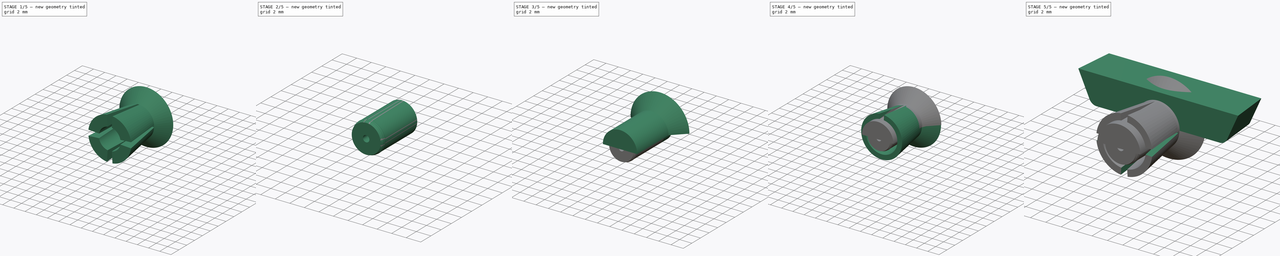
[diagram: build sequence overview — one tinted view per stage of 5, left to right]
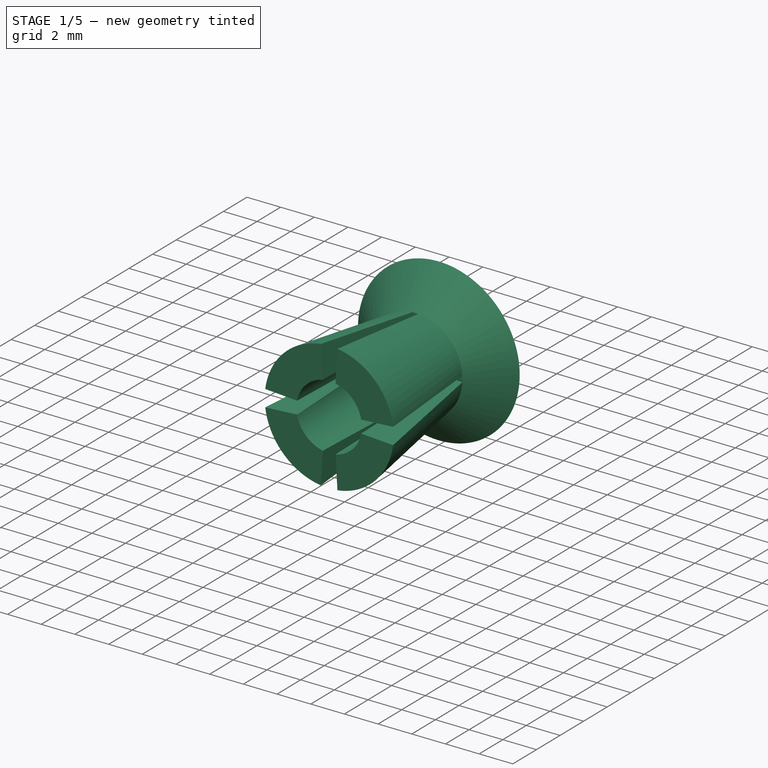
[diagram: stage 1 of 5 — iso view after this stage's code; geometry added in this stage tinted green]
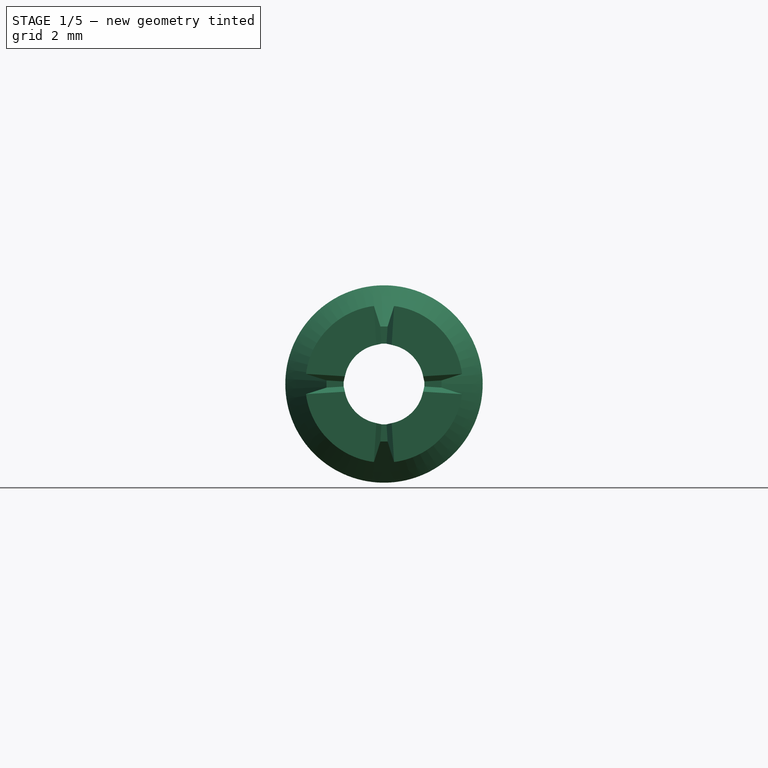
[diagram: stage 1 of 5 — front view after this stage's code; geometry added in this stage tinted green]
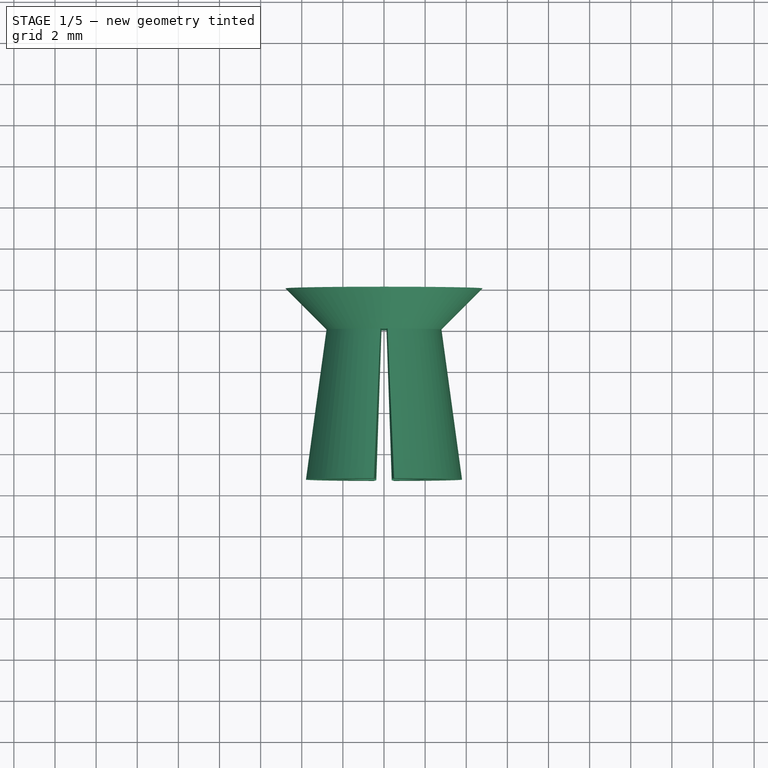
[diagram: stage 1 of 5 — top view after this stage's code; geometry added in this stage tinted green]
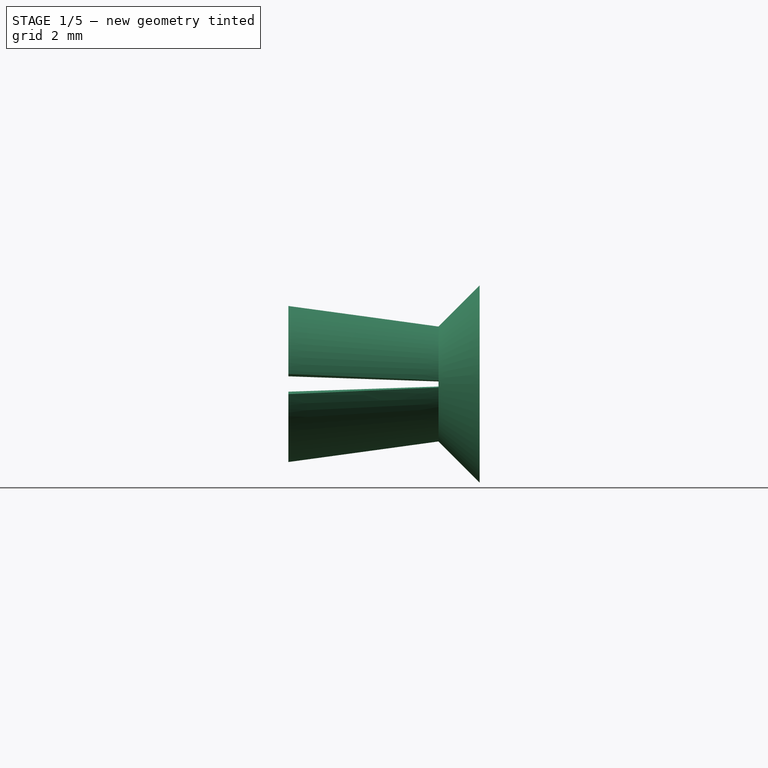
[diagram: stage 1 of 5 — right view after this stage's code; geometry added in this stage tinted green]
FCSTD DOCUMENT  (FreeCAD 1.2R20260210 (Git shallow))
Label: PD_Pins
License: Creative Commons Attribution 4.0
LicenseURL: https://creativecommons.org/licenses/by/4.0/
objects: Sketcher::SketchObject×17, PartDesign::Pad×9, App::Point×8, PartDesign::Body×7, PartDesign::Draft×5, PartDesign::AdditiveLoft×5, PartDesign::Fillet×2, PartDesign::Pocket×2, PartDesign::PolarPattern×2, PartDesign::Groove×2, PartDesign::ShapeBinder×1, PartDesign::Revolution×1, App::Part×1
note: 124 computed .brp shape members not serialized (recipe doc carries the construction recipe); baked Part::Feature solids carry a one-line shape summary decoded from their .brp

FEATURE [PartDesign::Body] Body002  label="Schraubenhalter V002"
  AllowCompound = true
  Group = -> [Sketch003,Pad002,Sketch004,Sketch009,Draft003,Draft004,AdditiveLoft004,Pocket,PolarPattern]
  Origin = -> Origin003
  Tip = -> PolarPattern
FEATURE [Sketcher::SketchObject] Sketch010
  ArcFitTolerance = 0
  AttachmentSupport = -> [XZ_Plane006]
  ExternalTypes = [0]
  FullyConstrained = true
  MakeInternals = false
  MapMode = 5
  Placement = pos=(0,0,0) rot=(1,0,0;1.5708rad)
  sketch-geometry (2):
    g0: Circle CenterX=0 CenterY=0 CenterZ=0 NormalX=0 NormalY=0 NormalZ=1 AngleXU=0 Radius=2.8
    g1: Circle CenterX=0 CenterY=0 CenterZ=0 NormalX=0 NormalY=0 NormalZ=1 AngleXU=0 Radius=1.965
  constraints (4):
    c: Coincident(g0,g-1)
    c: Coincident(g1,g0)
    c: Diameter(g0) = 5.6
    c: Diameter(g1) = 3.93
FEATURE [PartDesign::Pad] Pad005
  Direction = (0,-1,2e-16)
  Length = 7.3
  Length2 = 10
  Placement = pos=(0,0,0) rot=(1,0,0;1.5708rad)
  Profile = -> Sketch010
  ReferenceAxis = -> Sketch010 [N_Axis]
  Refine = true
  SideType = 0
  Suppressed = false
  Type = 0
  Type2 = 0
FEATURE [PartDesign::Draft] Draft005
  Angle = 8
  Base = -> Pad005 [Face1]
  BaseFeature = -> Pad005
  NeutralPlane = -> Pad005 [Face3]
  Placement = pos=(0,0,0) rot=(1,0,0;1.5708rad)
  Refine = true
  SupportTransform = false
  Suppressed = false
FEATURE [PartDesign::Draft] Draft006
  Angle = 0.2
  Base = -> Draft005 [Face2]
  BaseFeature = -> Draft005
  NeutralPlane = -> Draft005 [Face3]
  Placement = pos=(0,0,0) rot=(1,0,0;1.5708rad)
  Refine = true
  SupportTransform = false
  Suppressed = false
FEATURE [Sketcher::SketchObject] Sketch011
  ArcFitTolerance = 0
  AttachmentOffset = pos=(0,0,-2) rot=(0,0,1;0rad)
  AttachmentSupport = -> [XZ_Plane006]
  ExternalTypes = [0]
  FullyConstrained = true
  MakeInternals = false
  MapMode = 5
  Placement = pos=(0,2,-4e-16) rot=(1,0,0;1.5708rad)
  sketch-geometry (2):
    g0: Circle CenterX=0 CenterY=0 CenterZ=0 NormalX=0 NormalY=0 NormalZ=1 AngleXU=0 Radius=4.8
    g1: Circle CenterX=0 CenterY=0 CenterZ=0 NormalX=0 NormalY=0 NormalZ=1 AngleXU=0 Radius=3.965
  constraints (4):
    c: Coincident(g0,g-1)
    c: Coincident(g1,g0)
    c: Diameter(g0) = 9.6
    c: Diameter(g1) = 7.93
FEATURE [PartDesign::AdditiveLoft] AdditiveLoft005
  BaseFeature = -> Draft006
  Closed = false
  Placement = pos=(0,0,0) rot=(1,0,0;1.5708rad)
  Profile = -> Sketch011
  Refine = true
  Ruled = false
  Sections = -> [Sketch010]
  Suppressed = false
FEATURE [Sketcher::SketchObject] Sketch012
  ArcFitTolerance = 0
  AttachmentSupport = -> [XZ_Plane006]
  ExternalTypes = [0]
  FullyConstrained = false
  MakeInternals = false
  MapMode = 5
  Placement = pos=(0,0,0) rot=(1,0,0;1.5708rad)
  sketch-geometry (4):
    g0: LineSegment StartX=-0.0973479 StartY=1.55757 StartZ=0 EndX=-0.25 EndY=4 EndZ=0
    g1: LineSegment StartX=-0.25 StartY=4 StartZ=0 EndX=0.25 EndY=4 EndZ=0
    g2: LineSegment StartX=0.25 StartY=4 StartZ=0 EndX=0.0973479 EndY=1.55757 EndZ=0
    g3: LineSegment StartX=-0.0973479 StartY=1.55757 StartZ=0 EndX=0.0973479 EndY=1.55757 EndZ=0
  constraints (7):
    c: Coincident(g0,g1)
    c: Coincident(g1,g2)
    c: Distance(g1) = 0.5
    c: Symmetric(g0,g1,g-2)
    c: Horizontal(g3)
    c: Coincident(g2,g3)
    c: Coincident(g0,g3)
FEATURE [PartDesign::Pocket] Pocket001
  BaseFeature = -> AdditiveLoft005
  Direction = (0,1,-2e-16)
  Length = 8
  Length2 = 5
  Placement = pos=(0,0,0) rot=(1,0,0;1.5708rad)
  Profile = -> Sketch012
  ReferenceAxis = -> Sketch012 [N_Axis]
  Refine = true
  Reversed = true
  SideType = 0
  Suppressed = false
  TaperAngle = 2
  Type = 0
  Type2 = 0
FEATURE [PartDesign::PolarPattern] PolarPattern001
  Angle = 360
  Axis = -> Sketch012 [N_Axis]
  BaseFeature = -> Pocket001
  Mode = 0
  Occurrences = 4
  Offset = 120
  Originals = -> [Pocket001]
  Placement = pos=(0,0,0) rot=(1,0,0;1.5708rad)
  Refine = true
  SpacingPattern = [0]
  Spacings = [-1,-1,-1]
  Suppressed = false
  TransformMode = 0
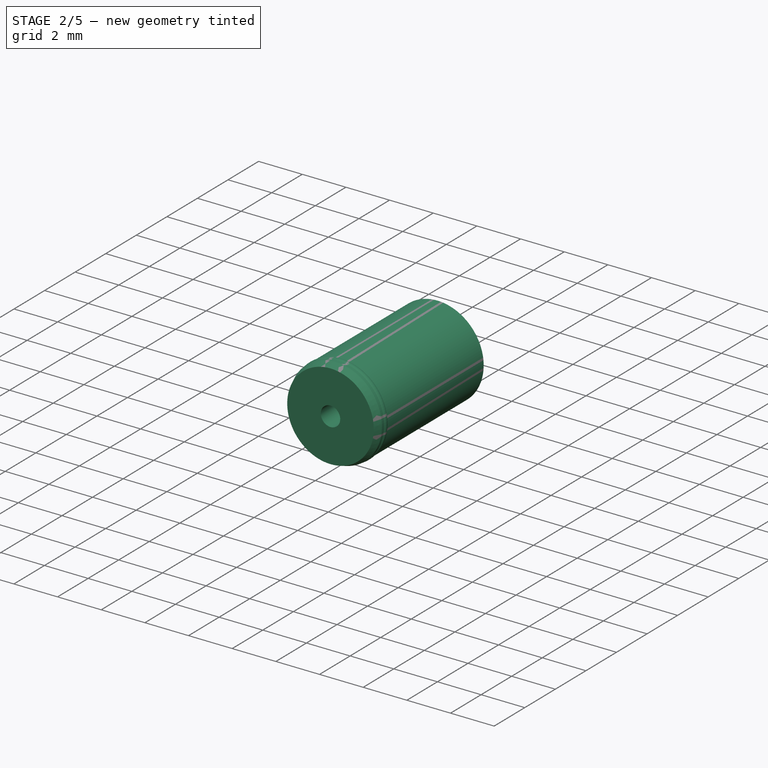
[diagram: stage 2 of 5 — iso view after this stage's code; geometry added in this stage tinted green]
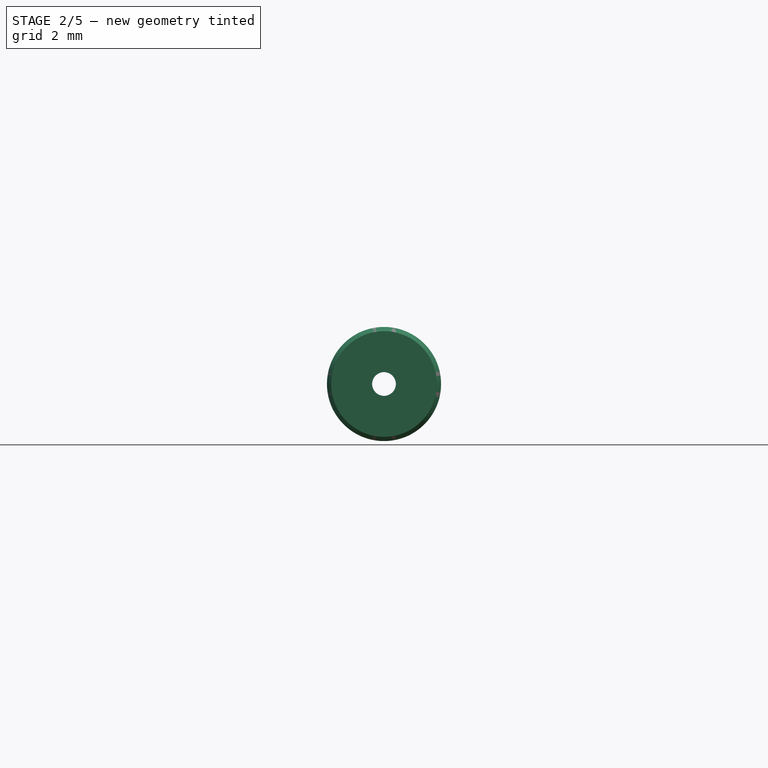
[diagram: stage 2 of 5 — front view after this stage's code; geometry added in this stage tinted green]
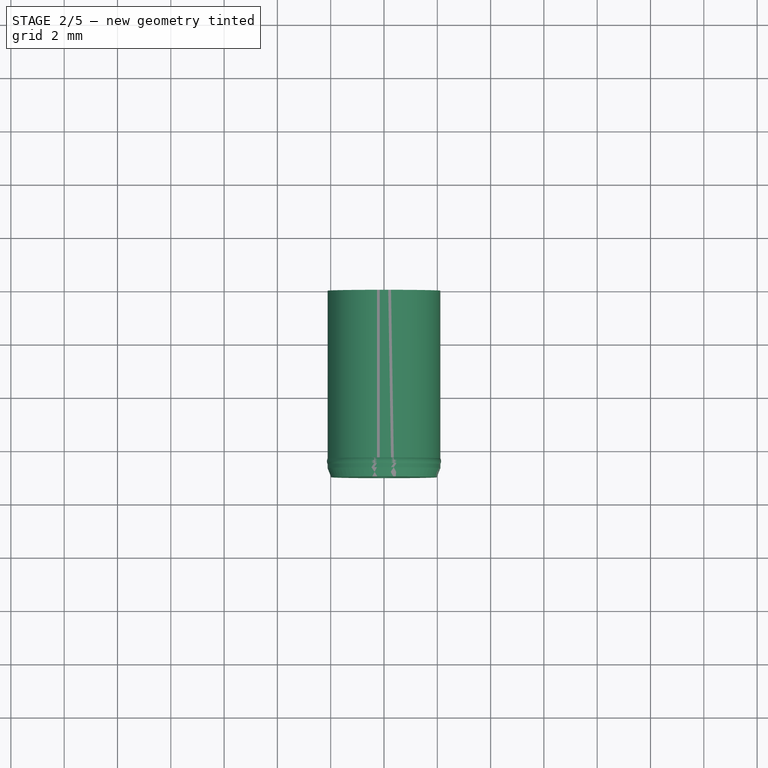
[diagram: stage 2 of 5 — top view after this stage's code; geometry added in this stage tinted green]
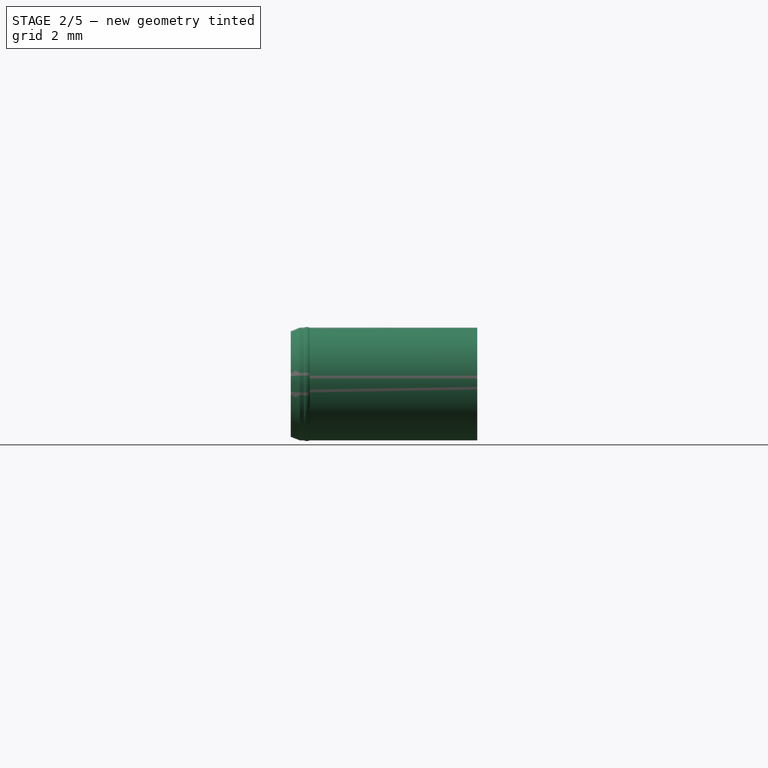
[diagram: stage 2 of 5 — right view after this stage's code; geometry added in this stage tinted green]
FEATURE [PartDesign::Fillet] Fillet002
  Base = -> PolarPattern001 [Edge24,Edge30,Edge36,Edge18,Edge20,Edge21,Edge14,Edge13,Edge32,Edge33,Edge27,Edge26]
  BaseFeature = -> PolarPattern001
  Placement = pos=(0,0,0) rot=(1,0,0;1.5708rad)
  Radius = 0.12
  Refine = true
  SupportTransform = false
  Suppressed = false
  UseAllEdges = false
FEATURE [PartDesign::Body] Body004  label="Schraubenhalter V004"
  AllowCompound = true
  Group = -> [Sketch007,Pad004,Sketch008,AdditiveLoft003]
  Origin = -> Origin005
  Tip = -> AdditiveLoft003
FEATURE [Sketcher::SketchObject] Sketch014
  ArcFitTolerance = 0
  AttachmentSupport = -> [XY_Plane006]
  ExternalGeometry = -> [Fillet002]
  ExternalTypes = [0]
  FullyConstrained = false
  MakeInternals = false
  MapMode = 5
  sketch-geometry (2):
    g0: LineSegment [constr] StartX=-1.96051 StartY=-0.115812 StartZ=0 EndX=-1.90305 EndY=-7.3 EndZ=0
    g1: Circle CenterX=-1.91025 CenterY=-6.40002 CenterZ=0 NormalX=0 NormalY=0 NormalZ=1 AngleXU=0 Radius=0.25
  constraints (4):
    c: Coincident(g0,g-4)
    c: Coincident(g0,g-3)
    c: PointOnObject(g1,g0)
    c: Diameter(g1) = 0.5
FEATURE [PartDesign::Groove] Groove
  Angle = 360
  Angle2 = 0
  Axis = (0,1,0)
  Base = (0,0,0)
  BaseFeature = -> Fillet002
  Placement = pos=(0,0,0) rot=(1,0,0;1.5708rad)
  Profile = -> Sketch014
  ReferenceAxis = -> Sketch014 [V_Axis]
  Refine = true
  Reversed = true
  Suppressed = false
  Type = 0
FEATURE [PartDesign::Body] Body005  label="Schraubenhalter V005"
  AllowCompound = true
  Group = -> [Sketch010,Pad005,Sketch011,Sketch012,Draft005,Draft006,AdditiveLoft005,Pocket001,PolarPattern001,Fillet002,Sketch014,Groove]
  Origin = -> Origin006
  Tip = -> Groove
FEATURE [PartDesign::ShapeBinder] ShapeBinder
  Support = -> [Body005]
  TraceSupport = false
FEATURE [Sketcher::SketchObject] Sketch013
  ArcFitTolerance = 0
  AttachmentSupport = -> [XZ_Plane007]
  ExternalGeometry = -> [ShapeBinder]
  ExternalTypes = [0]
  FullyConstrained = false
  MakeInternals = false
  MapMode = 5
  Placement = pos=(0,0,0) rot=(1,0,0;1.5708rad)
  sketch-geometry (4):
    g0: Circle CenterX=0 CenterY=0 CenterZ=0 NormalX=0 NormalY=0 NormalZ=1 AngleXU=0 Radius=2.115
    g1: LineSegment [constr] StartX=-1.61996 StartY=1.35976 StartZ=0 EndX=-1.50507 EndY=1.26333 EndZ=0
    g2: Circle CenterX=0 CenterY=0 CenterZ=0 NormalX=0 NormalY=0 NormalZ=1 AngleXU=0 Radius=0.445
    g3: LineSegment [constr] StartX=-1.61996 StartY=1.35976 StartZ=0 EndX=-0.340843 EndY=0.286097 EndZ=0
  constraints (10):
    c: Perpendicular(g-3,g1)
    c: PointOnObject(g1,g-3)
    c: PointOnObject(g1,g0)
    c: Distance(g1) = 0.15
    c: Coincident(g0,g-6)
    c: Coincident(g2,g0)
    c: Coincident(g3,g1)
    c: PointOnObject(g3,g2)
    c: Perpendicular(g2,g3)
    c: Distance(g3) = 1.67
FEATURE [PartDesign::Pad] Pad006
  Direction = (0,-1,2e-16)
  Length = 7
  Length2 = 10
  Placement = pos=(0,0,0) rot=(1,0,0;1.5708rad)
  Profile = -> Sketch013
  ReferenceAxis = -> Sketch013 [N_Axis]
  Refine = true
  SideType = 0
  Suppressed = false
  Type = 0
  Type2 = 0
FEATURE [Sketcher::SketchObject] Sketch015
  ArcFitTolerance = 0
  AttachmentSupport = -> [XY_Plane007]
  ExternalGeometry = -> [ShapeBinder]
  ExternalTypes = [0]
  FullyConstrained = false
  MakeInternals = false
  MapMode = 5
  sketch-geometry (2):
    g0: LineSegment [constr] StartX=-1.96051 StartY=-0.115812 StartZ=0 EndX=-1.90305 EndY=-7.3 EndZ=0
    g1: Circle CenterX=-1.91669 CenterY=-6.39808 CenterZ=0 NormalX=0 NormalY=0 NormalZ=1 AngleXU=0 Radius=0.225
  constraints (3):
    c: Coincident(g0,g-4)
    c: Coincident(g0,g-3)
    c: Diameter(g1) = 0.45
FEATURE [PartDesign::Revolution] Revolution
  Angle = 360
  Angle2 = 0
  Axis = (0,1,0)
  Base = (0,0,0)
  BaseFeature = -> Pad006
  FuseOrder = 0
  Placement = pos=(0,0,0) rot=(1,0,0;1.5708rad)
  Profile = -> Sketch015
  ReferenceAxis = -> Sketch015 [V_Axis]
  Refine = true
  Suppressed = false
  Type = 0
FEATURE [Sketcher::SketchObject] Sketch016
  ArcFitTolerance = 0
  AttachmentSupport = -> [XY_Plane007]
  ExternalTypes = [0]
  FullyConstrained = false
  MakeInternals = false
  MapMode = 5
  sketch-geometry (3):
    g0: LineSegment StartX=-2.23885 StartY=-6.34167 StartZ=0 EndX=-1.80714 EndY=-7.44481 EndZ=0
    g1: LineSegment StartX=-1.80714 StartY=-7.44481 StartZ=0 EndX=-2.2822 EndY=-7.15988 EndZ=0
    g2: LineSegment StartX=-2.2822 StartY=-7.15988 StartZ=0 EndX=-2.23885 EndY=-6.34167 EndZ=0
  constraints (3):
    c: Coincident(g0,g1)
    c: Coincident(g1,g2)
    c: Coincident(g2,g0)
FEATURE [PartDesign::Groove] Groove001
  Angle = 360
  Angle2 = 0
  Axis = (0,1,0)
  Base = (0,0,0)
  BaseFeature = -> Revolution
  Placement = pos=(0,0,0) rot=(1,0,0;1.5708rad)
  Profile = -> Sketch016
  ReferenceAxis = -> Sketch016 [V_Axis]
  Refine = true
  Reversed = true
  Suppressed = false
  Type = 0
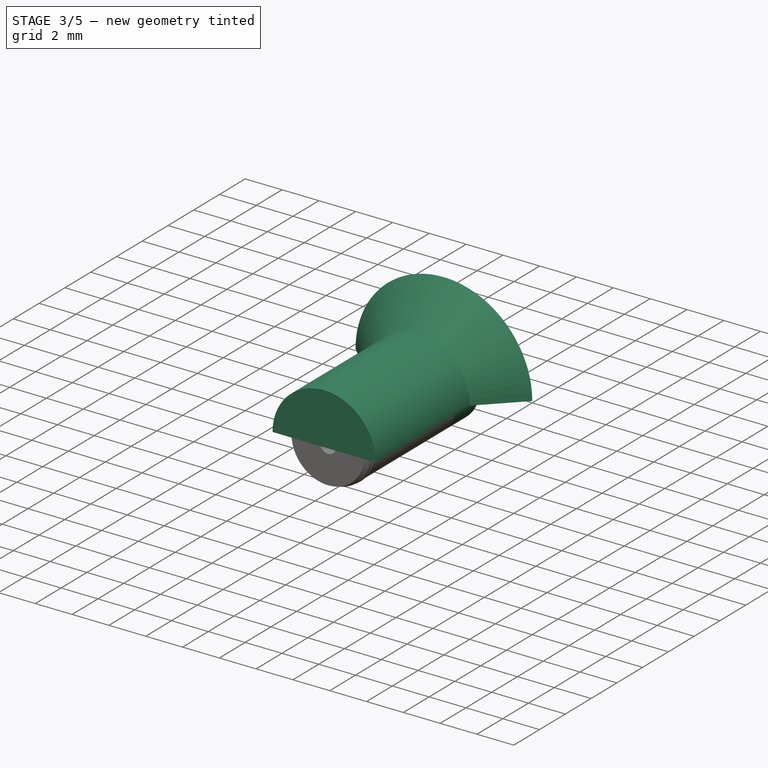
[diagram: stage 3 of 5 — iso view after this stage's code; geometry added in this stage tinted green]
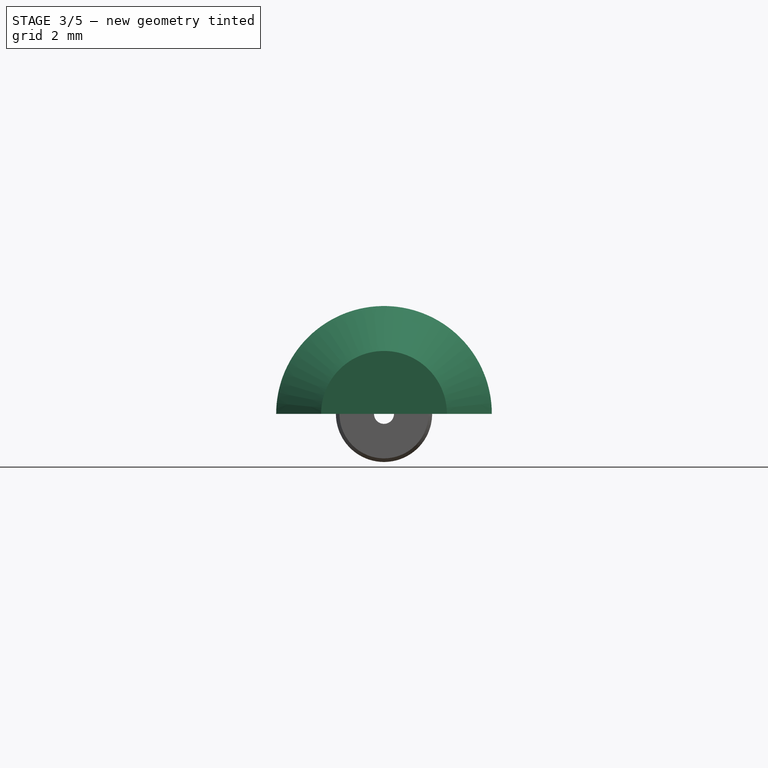
[diagram: stage 3 of 5 — front view after this stage's code; geometry added in this stage tinted green]
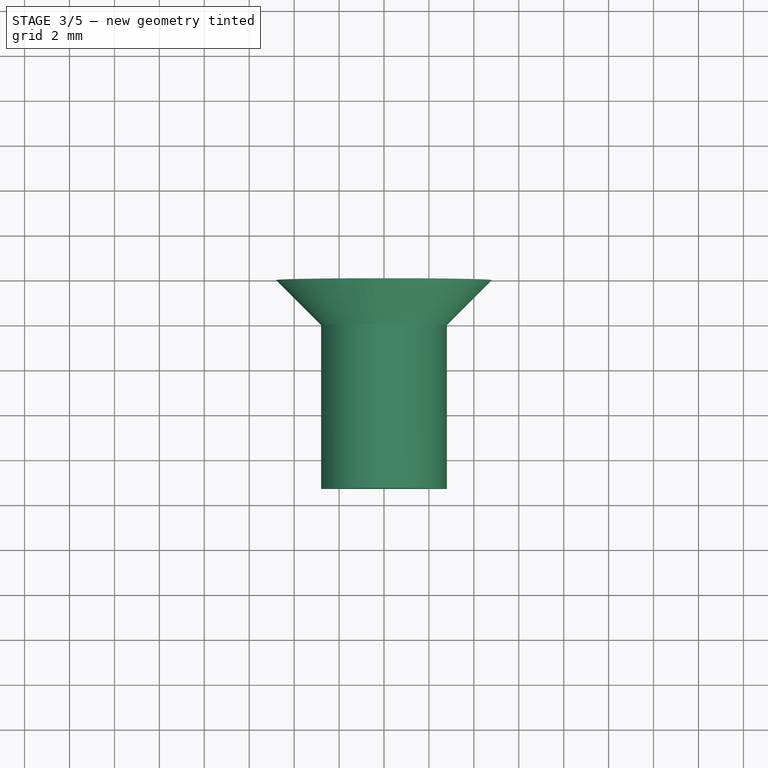
[diagram: stage 3 of 5 — top view after this stage's code; geometry added in this stage tinted green]
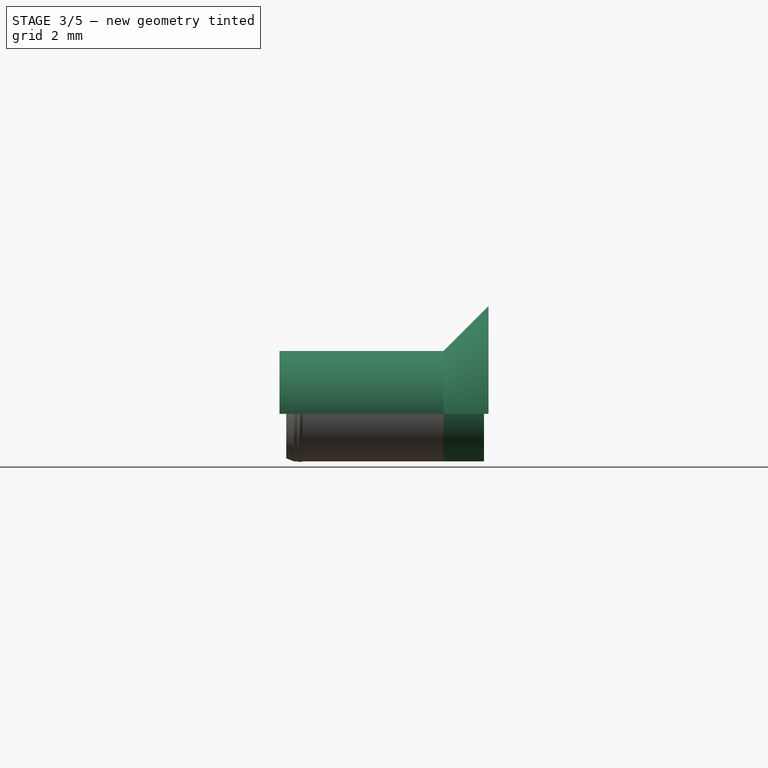
[diagram: stage 3 of 5 — right view after this stage's code; geometry added in this stage tinted green]
FEATURE [Sketcher::SketchObject] Sketch005
  ArcFitTolerance = 0
  AttachmentSupport = -> [XZ_Plane004]
  ExternalTypes = [0]
  FullyConstrained = true
  MakeInternals = false
  MapMode = 5
  Placement = pos=(0,0,0) rot=(1,0,0;1.5708rad)
  sketch-geometry (2):
    g0: ArcOfCircle CenterX=0 CenterY=0 CenterZ=0 NormalX=0 NormalY=0 NormalZ=1 AngleXU=0 Radius=2.8 StartAngle=0 EndAngle=3.14159
    g1: LineSegment StartX=-2.8 StartY=7.8e-15 StartZ=0 EndX=2.8 EndY=7.8e-15 EndZ=0
  constraints (6):
    c: Coincident(g0,g-1)
    c: Horizontal(g1)
    c: PointOnObject(g1,g-1)
    c: Coincident(g0,g1)
    c: Coincident(g0,g1)
    c: DistanceX(g1,g1) = 5.6
FEATURE [PartDesign::Pad] Pad003
  Direction = (0,-1,2e-16)
  Length = 7.3
  Length2 = 10
  Placement = pos=(0,0,0) rot=(1,0,0;1.5708rad)
  Profile = -> Sketch005
  ReferenceAxis = -> Sketch005 [N_Axis]
  Refine = true
  SideType = 0
  Suppressed = false
  Type = 0
  Type2 = 0
FEATURE [Sketcher::SketchObject] Sketch006
  ArcFitTolerance = 0
  AttachmentOffset = pos=(0,0,-2) rot=(0,0,1;0rad)
  AttachmentSupport = -> [XZ_Plane004]
  ExternalTypes = [0]
  FullyConstrained = true
  MakeInternals = false
  MapMode = 5
  Placement = pos=(0,2,-4e-16) rot=(1,0,0;1.5708rad)
  sketch-geometry (2):
    g0: ArcOfCircle CenterX=0 CenterY=0 CenterZ=0 NormalX=0 NormalY=0 NormalZ=1 AngleXU=0 Radius=4.8 StartAngle=0 EndAngle=3.14159
    g1: LineSegment StartX=-4.8 StartY=0 StartZ=0 EndX=4.8 EndY=0 EndZ=0
  constraints (6):
    c: Coincident(g0,g-1)
    c: Horizontal(g1)
    c: PointOnObject(g1,g-1)
    c: Coincident(g0,g1)
    c: Coincident(g0,g1)
    c: DistanceX(g1,g1) = 9.6
FEATURE [PartDesign::AdditiveLoft] AdditiveLoft002
  BaseFeature = -> Pad003
  Closed = false
  Placement = pos=(0,0,0) rot=(1,0,0;1.5708rad)
  Profile = -> Sketch005
  Refine = true
  Ruled = false
  Sections = -> [Sketch006]
  Suppressed = false
FEATURE [PartDesign::Body] Body003  label="Schraubenhalter V003"
  AllowCompound = true
  Group = -> [Sketch005,Pad003,Sketch006,AdditiveLoft002]
  Origin = -> Origin004
  Tip = -> AdditiveLoft002
FEATURE [Sketcher::SketchObject] Sketch007
  ArcFitTolerance = 0
  AttachmentSupport = -> [XZ_Plane005]
  ExternalTypes = [0]
  FullyConstrained = true
  MakeInternals = false
  MapMode = 5
  Placement = pos=(0,0,0) rot=(1,0,0;1.5708rad)
  sketch-geometry (2):
    g0: ArcOfCircle CenterX=0 CenterY=0 CenterZ=0 NormalX=0 NormalY=0 NormalZ=1 AngleXU=0 Radius=2.8 StartAngle=0 EndAngle=3.14159
    g1: LineSegment StartX=-2.8 StartY=1e-16 StartZ=0 EndX=2.8 EndY=1e-16 EndZ=0
  constraints (6):
    c: Coincident(g0,g-1)
    c: Horizontal(g1)
    c: PointOnObject(g1,g-1)
    c: Coincident(g0,g1)
    c: Coincident(g0,g1)
    c: DistanceX(g1,g1) = 5.6
FEATURE [PartDesign::Pad] Pad004
  Direction = (0,-1,2e-16)
  Length = 7.3
  Length2 = 10
  Placement = pos=(0,0,0) rot=(1,0,0;1.5708rad)
  Profile = -> Sketch007
  ReferenceAxis = -> Sketch007 [N_Axis]
  Refine = true
  SideType = 0
  Suppressed = false
  Type = 0
  Type2 = 0
FEATURE [Sketcher::SketchObject] Sketch008
  ArcFitTolerance = 0
  AttachmentOffset = pos=(0,0,-2) rot=(0,0,1;0rad)
  AttachmentSupport = -> [XZ_Plane005]
  ExternalTypes = [0]
  FullyConstrained = true
  MakeInternals = false
  MapMode = 5
  Placement = pos=(0,2,-4e-16) rot=(1,0,0;1.5708rad)
  sketch-geometry (2):
    g0: ArcOfCircle CenterX=0 CenterY=0 CenterZ=0 NormalX=0 NormalY=0 NormalZ=1 AngleXU=0 Radius=4.8 StartAngle=0 EndAngle=3.14159
    g1: LineSegment StartX=-4.8 StartY=0 StartZ=0 EndX=4.8 EndY=0 EndZ=0
  constraints (6):
    c: Coincident(g0,g-1)
    c: Horizontal(g1)
    c: PointOnObject(g1,g-1)
    c: Coincident(g0,g1)
    c: Coincident(g0,g1)
    c: DistanceX(g1,g1) = 9.6
FEATURE [PartDesign::AdditiveLoft] AdditiveLoft003
  BaseFeature = -> Pad004
  Closed = false
  Placement = pos=(0,0,0) rot=(1,0,0;1.5708rad)
  Profile = -> Sketch007
  Refine = true
  Ruled = false
  Sections = -> [Sketch008]
  Suppressed = false
FEATURE [PartDesign::Pad] Pad007
  BaseFeature = -> Groove001
  Direction = (0,1,0)
  Length = 0.2
  Length2 = 10
  Placement = pos=(0,0,0) rot=(1,0,0;1.5708rad)
  Profile = -> Groove001 [Face2]
  SideType = 0
  Suppressed = false
  Type = 0
  Type2 = 0
FEATURE [PartDesign::Pad] Pad008
  BaseFeature = -> Pad007
  Direction = (0,1,0)
  Length = 1.6
  Length2 = 10
  Placement = pos=(0,0,0) rot=(1,0,0;1.5708rad)
  Profile = -> Pad007 [Face5]
  SideType = 0
  Suppressed = false
  Type = 0
  Type2 = 0
FEATURE [PartDesign::Body] Body006  label="Pin V005"
  AllowCompound = true
  Group = -> [Sketch013,ShapeBinder,Pad006,Sketch015,Revolution,Sketch016,Groove001,Pad007,Pad008]
  Origin = -> Origin007
  Tip = -> Pad008
FEATURE [App::Part] Part
  Group = -> [Body,Body001,Body002,Body003,Body004,Body005,Body006]
  Origin = -> Origin
FEATURE [App::Point] Origin008  label="Ursprung"
  Role = Origin
FEATURE [App::Point] Origin009  label="Ursprung"
  Role = Origin
FEATURE [App::Point] Origin010  label="Ursprung"
  Role = Origin
FEATURE [App::Point] Origin011  label="Ursprung"
  Role = Origin
FEATURE [App::Point] Origin012  label="Ursprung"
  Role = Origin
FEATURE [App::Point] Origin013  label="Ursprung"
  Role = Origin
FEATURE [App::Point] Origin014  label="Ursprung"
  Role = Origin
FEATURE [App::Point] Origin015  label="Ursprung"
  Role = Origin
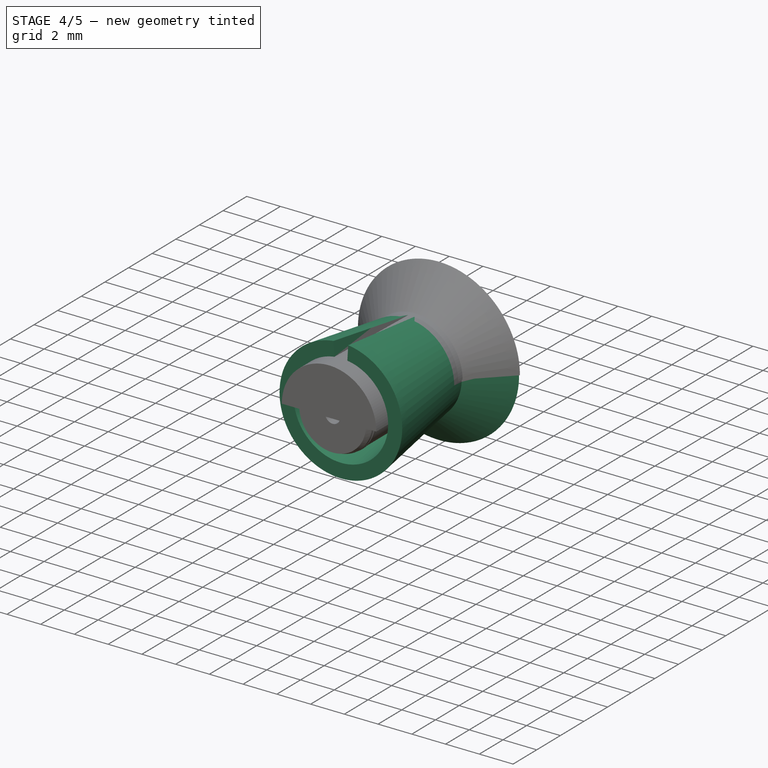
[diagram: stage 4 of 5 — iso view after this stage's code; geometry added in this stage tinted green]
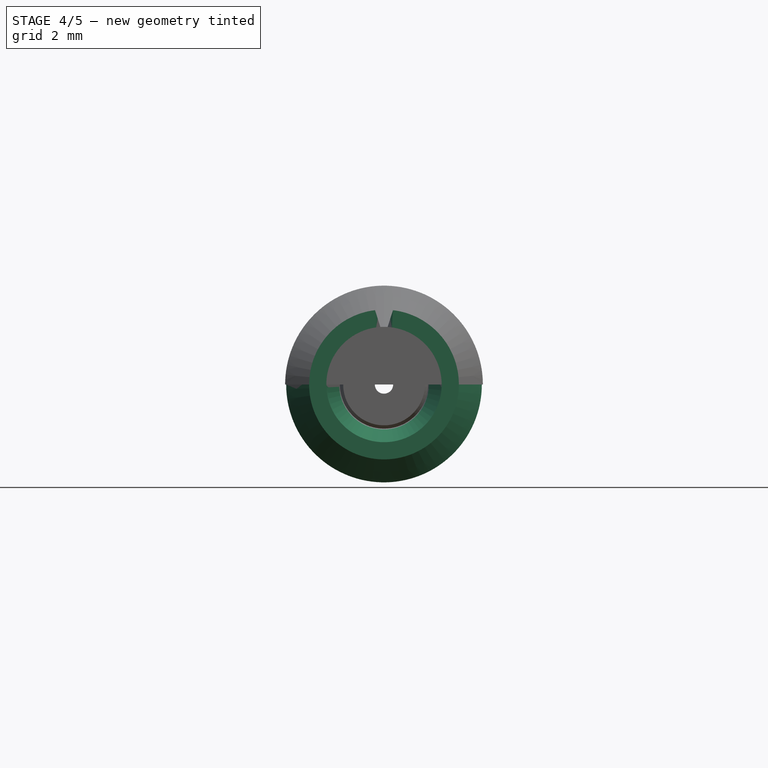
[diagram: stage 4 of 5 — front view after this stage's code; geometry added in this stage tinted green]
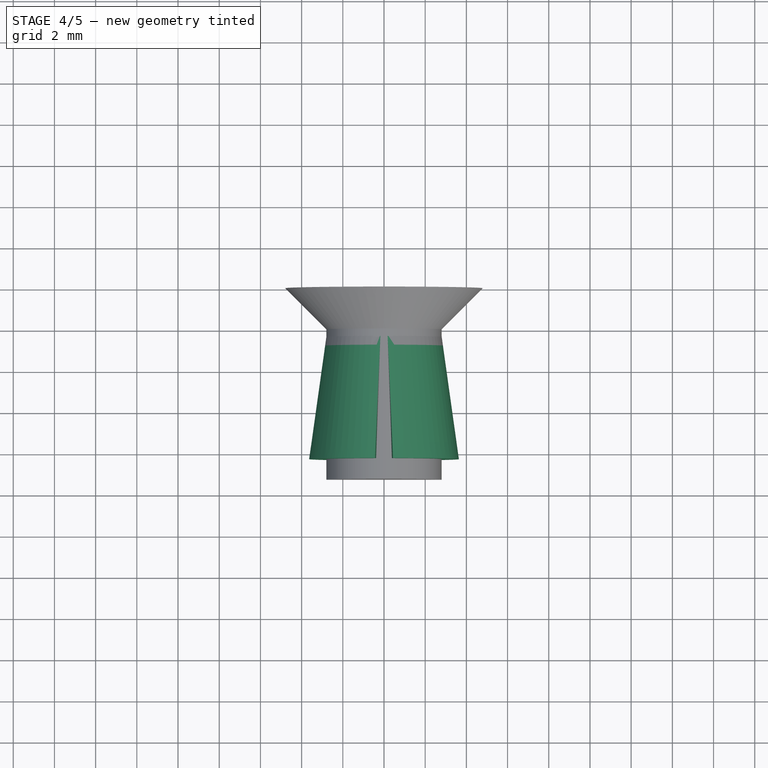
[diagram: stage 4 of 5 — top view after this stage's code; geometry added in this stage tinted green]
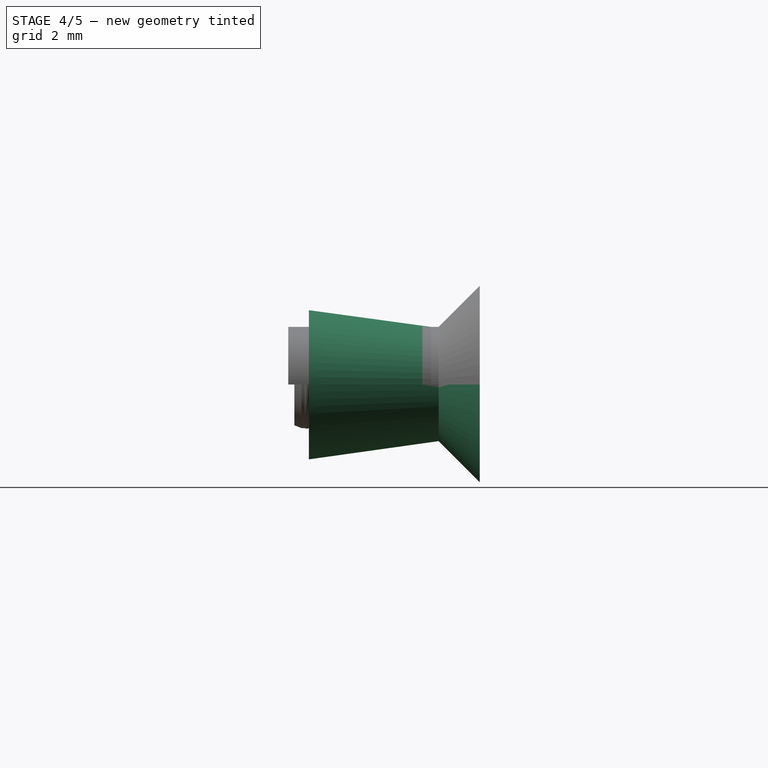
[diagram: stage 4 of 5 — right view after this stage's code; geometry added in this stage tinted green]
FEATURE [PartDesign::Body] Body001  label="Schraubenhalter V001"
  AllowCompound = true
  Group = -> [Sketch001,Pad001,Sketch002,AdditiveLoft]
  Origin = -> Origin002
  Tip = -> AdditiveLoft
FEATURE [Sketcher::SketchObject] Sketch003
  ArcFitTolerance = 0
  AttachmentSupport = -> [XZ_Plane003]
  ExternalTypes = [0]
  FullyConstrained = true
  MakeInternals = false
  MapMode = 5
  Placement = pos=(0,0,0) rot=(1,0,0;1.5708rad)
  sketch-geometry (2):
    g0: Circle CenterX=0 CenterY=0 CenterZ=0 NormalX=0 NormalY=0 NormalZ=1 AngleXU=0 Radius=2.75
    g1: Circle CenterX=0 CenterY=0 CenterZ=0 NormalX=0 NormalY=0 NormalZ=1 AngleXU=0 Radius=1.915
  constraints (4):
    c: Coincident(g0,g-1)
    c: Coincident(g1,g0)
    c: Diameter(g0) = 5.5
    c: Diameter(g1) = 3.83
FEATURE [PartDesign::Pad] Pad002
  Direction = (0,-1,2e-16)
  Length = 6.3
  Length2 = 10
  Placement = pos=(0,0,0) rot=(1,0,0;1.5708rad)
  Profile = -> Sketch003
  ReferenceAxis = -> Sketch003 [N_Axis]
  Refine = true
  SideType = 0
  Suppressed = false
  Type = 0
  Type2 = 0
FEATURE [Sketcher::SketchObject] Sketch004
  ArcFitTolerance = 0
  AttachmentOffset = pos=(0,0,-2) rot=(0,0,1;0rad)
  AttachmentSupport = -> [XZ_Plane003]
  ExternalTypes = [0]
  FullyConstrained = true
  MakeInternals = false
  MapMode = 5
  Placement = pos=(0,2,-4e-16) rot=(1,0,0;1.5708rad)
  sketch-geometry (2):
    g0: Circle CenterX=0 CenterY=0 CenterZ=0 NormalX=0 NormalY=0 NormalZ=1 AngleXU=0 Radius=4.75
    g1: Circle CenterX=0 CenterY=0 CenterZ=0 NormalX=0 NormalY=0 NormalZ=1 AngleXU=0 Radius=3.915
  constraints (4):
    c: Coincident(g0,g-1)
    c: Coincident(g1,g0)
    c: Diameter(g0) = 9.5
    c: Diameter(g1) = 7.83
FEATURE [Sketcher::SketchObject] Sketch009
  ArcFitTolerance = 0
  AttachmentOffset = pos=(0,0,0.3) rot=(0,0,1;0rad)
  AttachmentSupport = -> [XZ_Plane003]
  ExternalTypes = [0]
  FullyConstrained = false
  MakeInternals = false
  MapMode = 5
  Placement = pos=(0,-0.3,1e-16) rot=(1,0,0;1.5708rad)
  sketch-geometry (4):
    g0: LineSegment StartX=-0.0973479 StartY=1.55757 StartZ=0 EndX=-0.25 EndY=4 EndZ=0
    g1: LineSegment StartX=-0.25 StartY=4 StartZ=0 EndX=0.25 EndY=4 EndZ=0
    g2: LineSegment StartX=0.25 StartY=4 StartZ=0 EndX=0.0973479 EndY=1.55757 EndZ=0
    g3: LineSegment StartX=-0.0973479 StartY=1.55757 StartZ=0 EndX=0.0973479 EndY=1.55757 EndZ=0
  constraints (7):
    c: Coincident(g0,g1)
    c: Coincident(g1,g2)
    c: Distance(g1) = 0.5
    c: Symmetric(g0,g1,g-2)
    c: Horizontal(g3)
    c: Coincident(g2,g3)
    c: Coincident(g0,g3)
FEATURE [PartDesign::Draft] Draft003
  Angle = 8
  Base = -> Pad002 [Face1]
  BaseFeature = -> Pad002
  NeutralPlane = -> Pad002 [Face3]
  Placement = pos=(0,0,0) rot=(1,0,0;1.5708rad)
  Refine = true
  SupportTransform = false
  Suppressed = false
FEATURE [PartDesign::Draft] Draft004
  Angle = 8
  Base = -> Draft003 [Face2]
  BaseFeature = -> Draft003
  NeutralPlane = -> Draft003 [Face3]
  Placement = pos=(0,0,0) rot=(1,0,0;1.5708rad)
  Refine = true
  Reversed = true
  SupportTransform = false
  Suppressed = false
FEATURE [PartDesign::AdditiveLoft] AdditiveLoft004
  BaseFeature = -> Draft004
  Closed = false
  Placement = pos=(0,0,0) rot=(1,0,0;1.5708rad)
  Profile = -> Sketch004
  Refine = true
  Ruled = false
  Sections = -> [Sketch003]
  Suppressed = false
FEATURE [PartDesign::Pocket] Pocket
  BaseFeature = -> AdditiveLoft004
  Direction = (0,1,-2e-16)
  Length = 8
  Length2 = 5
  Placement = pos=(0,0,0) rot=(1,0,0;1.5708rad)
  Profile = -> Sketch009
  ReferenceAxis = -> Sketch009 [N_Axis]
  Refine = true
  Reversed = true
  SideType = 0
  Suppressed = false
  TaperAngle = 2
  Type = 0
  Type2 = 0
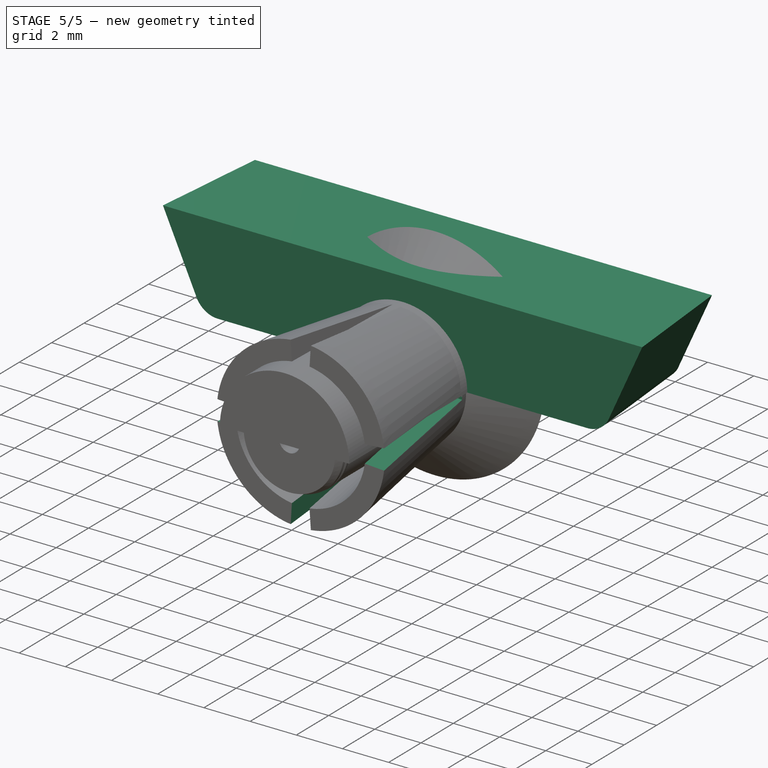
[diagram: stage 5 of 5 — iso view after this stage's code; geometry added in this stage tinted green]
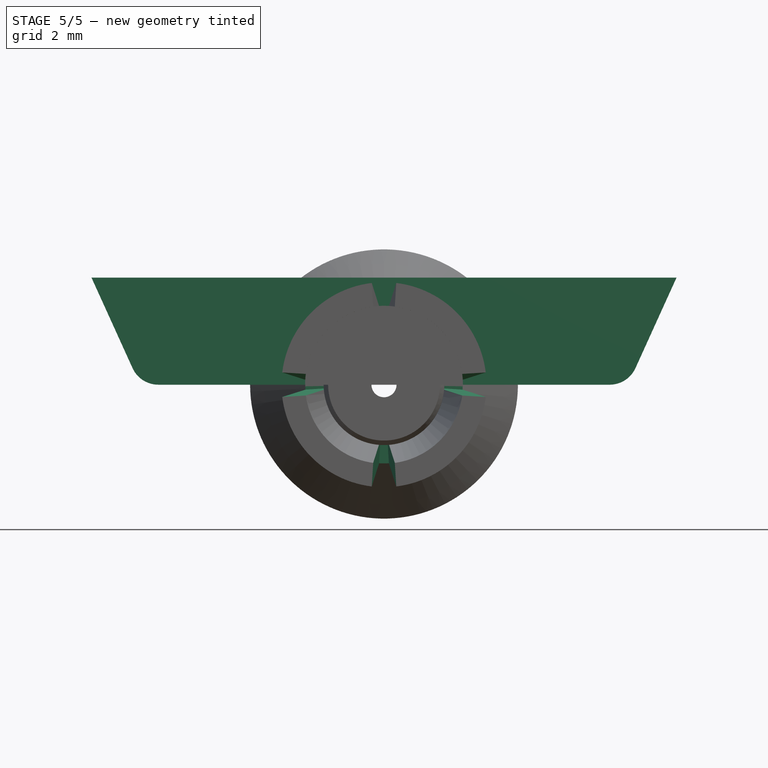
[diagram: stage 5 of 5 — front view after this stage's code; geometry added in this stage tinted green]
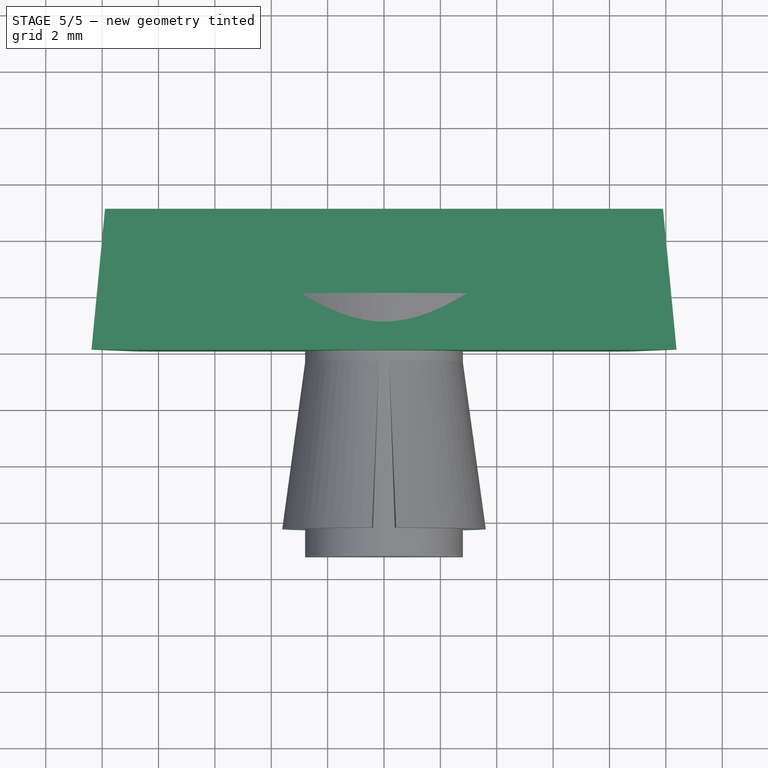
[diagram: stage 5 of 5 — top view after this stage's code; geometry added in this stage tinted green]
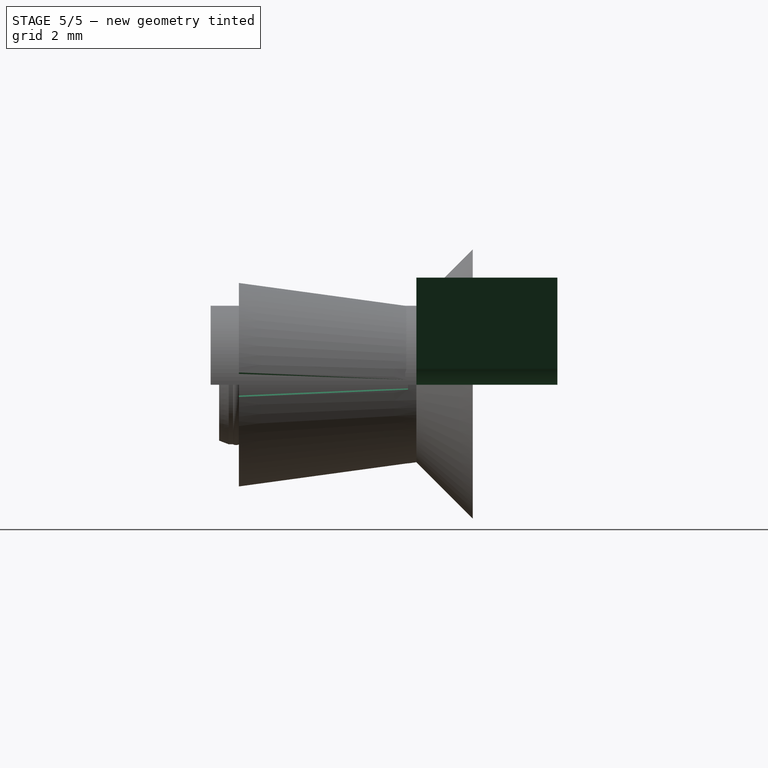
[diagram: stage 5 of 5 — right view after this stage's code; geometry added in this stage tinted green]
FEATURE [Sketcher::SketchObject] Sketch
  ArcFitTolerance = 0
  AttachmentSupport = -> [XZ_Plane001]
  ExternalTypes = [0]
  FullyConstrained = true
  MakeInternals = false
  MapMode = 5
  Placement = pos=(0,0,0) rot=(1,0,0;1.5708rad)
  sketch-geometry (4):
    g0: LineSegment StartX=-8.6525 StartY=0 StartZ=0 EndX=8.6525 EndY=0 EndZ=0
    g1: LineSegment StartX=8.6525 StartY=0 StartZ=0 EndX=10.3775 EndY=3.8 EndZ=0
    g2: LineSegment StartX=10.3775 StartY=3.8 StartZ=0 EndX=-10.3775 EndY=3.8 EndZ=0
    g3: LineSegment StartX=-10.3775 StartY=3.8 StartZ=0 EndX=-8.6525 EndY=0 EndZ=0
  constraints (10):
    c: Coincident(g0,g1)
    c: Coincident(g1,g2)
    c: Coincident(g2,g3)
    c: Coincident(g3,g0)
    c: Symmetric(g2,g1,g-2)
    c: Symmetric(g0,g0,g-2)
    c: DistanceX(g0,g0) = 17.305
    c: DistanceX(g2,g2) = 20.755
    c: DistanceY(g0,g1) = 3.8
    c: PointOnObject(g0,g-1)
FEATURE [PartDesign::Pad] Pad
  Direction = (0,-1,2e-16)
  Length = 5
  Length2 = 10
  Placement = pos=(0,0,0) rot=(1,0,0;1.5708rad)
  Profile = -> Sketch
  ReferenceAxis = -> Sketch [N_Axis]
  Refine = true
  Reversed = true
  SideType = 0
  Suppressed = false
  Type = 0
  Type2 = 0
FEATURE [PartDesign::Draft] Draft
  Angle = 5
  Base = -> Pad [Face2,Face4]
  BaseFeature = -> Pad
  NeutralPlane = -> Pad [Face5]
  Placement = pos=(0,0,0) rot=(1,0,0;1.5708rad)
  Refine = true
  SupportTransform = false
  Suppressed = false
FEATURE [PartDesign::Fillet] Fillet
  Base = -> Draft [Edge1,Edge2]
  BaseFeature = -> Draft
  Placement = pos=(0,0,0) rot=(1,0,0;1.5708rad)
  Radius = 1
  Refine = true
  SupportTransform = false
  Suppressed = false
  UseAllEdges = false
FEATURE [PartDesign::Body] Body  label="Kleberblocker"
  AllowCompound = true
  Group = -> [Sketch,Pad,Draft,Fillet]
  Origin = -> Origin001
  Tip = -> Fillet
FEATURE [Sketcher::SketchObject] Sketch001
  ArcFitTolerance = 0
  AttachmentSupport = -> [XZ_Plane002]
  ExternalTypes = [0]
  FullyConstrained = true
  MakeInternals = false
  MapMode = 5
  Placement = pos=(0,0,0) rot=(1,0,0;1.5708rad)
  sketch-geometry (2):
    g0: ArcOfCircle CenterX=0 CenterY=0 CenterZ=0 NormalX=0 NormalY=0 NormalZ=1 AngleXU=0 Radius=2.8 StartAngle=0 EndAngle=3.14159
    g1: LineSegment StartX=-2.8 StartY=7.8e-15 StartZ=0 EndX=2.8 EndY=7.8e-15 EndZ=0
  constraints (6):
    c: Coincident(g0,g-1)
    c: Horizontal(g1)
    c: PointOnObject(g1,g-1)
    c: Coincident(g0,g1)
    c: Coincident(g0,g1)
    c: DistanceX(g1,g1) = 5.6
FEATURE [PartDesign::Pad] Pad001
  Direction = (0,-1,2e-16)
  Length = 7.3
  Length2 = 10
  Placement = pos=(0,0,0) rot=(1,0,0;1.5708rad)
  Profile = -> Sketch001
  ReferenceAxis = -> Sketch001 [N_Axis]
  Refine = true
  SideType = 0
  Suppressed = false
  Type = 0
  Type2 = 0
FEATURE [Sketcher::SketchObject] Sketch002
  ArcFitTolerance = 0
  AttachmentOffset = pos=(0,0,-2) rot=(0,0,1;0rad)
  AttachmentSupport = -> [XZ_Plane002]
  ExternalTypes = [0]
  FullyConstrained = true
  MakeInternals = false
  MapMode = 5
  Placement = pos=(0,2,-4e-16) rot=(1,0,0;1.5708rad)
  sketch-geometry (2):
    g0: ArcOfCircle CenterX=0 CenterY=0 CenterZ=0 NormalX=0 NormalY=0 NormalZ=1 AngleXU=0 Radius=4.8 StartAngle=0 EndAngle=3.14159
    g1: LineSegment StartX=-4.8 StartY=0 StartZ=0 EndX=4.8 EndY=0 EndZ=0
  constraints (6):
    c: Coincident(g0,g-1)
    c: Horizontal(g1)
    c: PointOnObject(g1,g-1)
    c: Coincident(g0,g1)
    c: Coincident(g0,g1)
    c: DistanceX(g1,g1) = 9.6
FEATURE [PartDesign::AdditiveLoft] AdditiveLoft
  BaseFeature = -> Pad001
  Closed = false
  Placement = pos=(0,0,0) rot=(1,0,0;1.5708rad)
  Profile = -> Sketch001
  Refine = true
  Ruled = false
  Sections = -> [Sketch002]
  Suppressed = false
FEATURE [PartDesign::PolarPattern] PolarPattern
  Angle = 360
  Axis = -> Sketch009 [N_Axis]
  BaseFeature = -> Pocket
  Mode = 0
  Occurrences = 4
  Offset = 120
  Originals = -> [Pocket]
  Placement = pos=(0,0,0) rot=(1,0,0;1.5708rad)
  Refine = true
  SpacingPattern = [0]
  Spacings = [-1,-1,-1]
  Suppressed = false
  TransformMode = 0
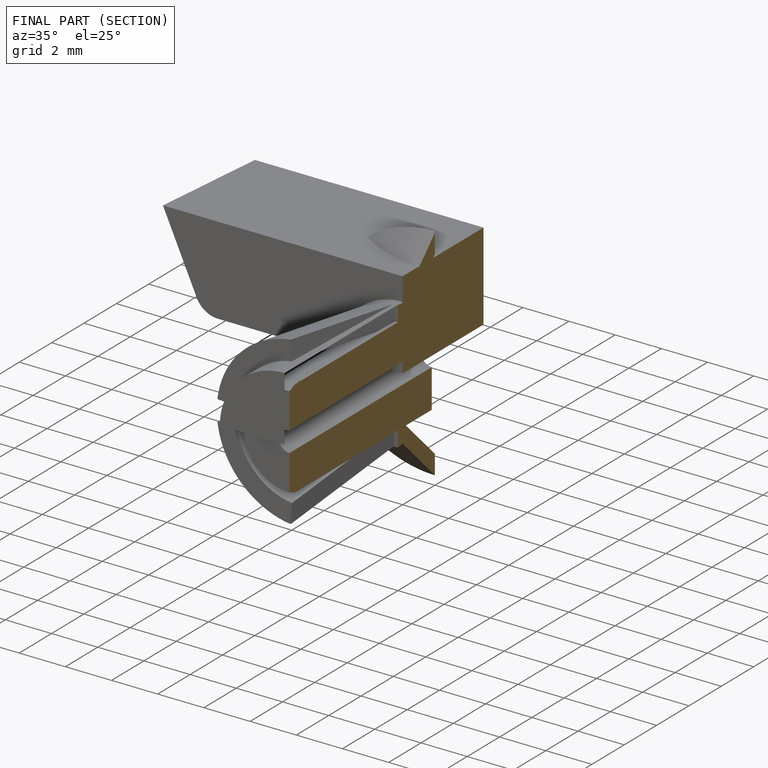
[diagram: finished part — half-section view (interior)]
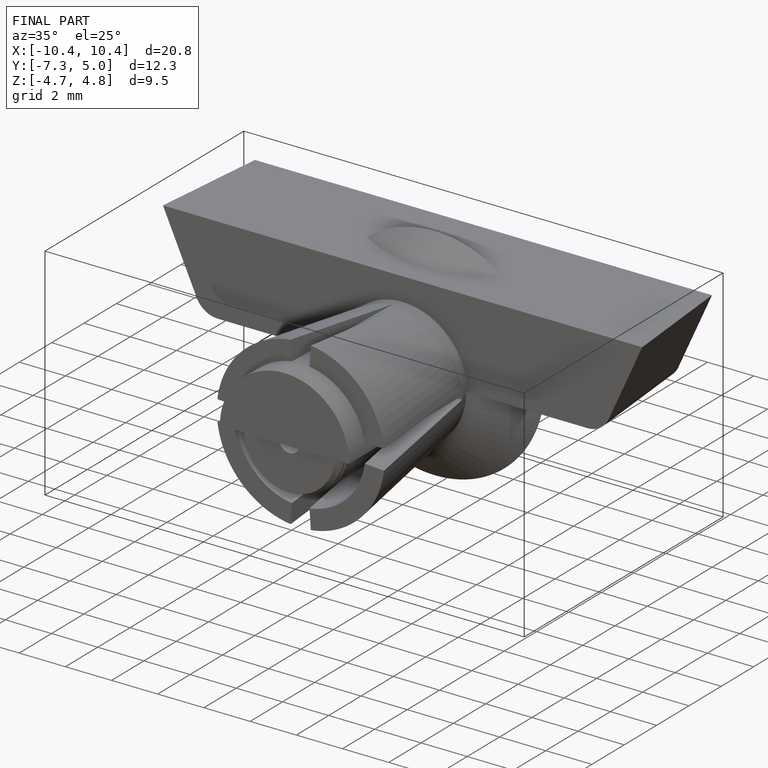
[diagram: finished part — iso view with bounding-box wireframe]
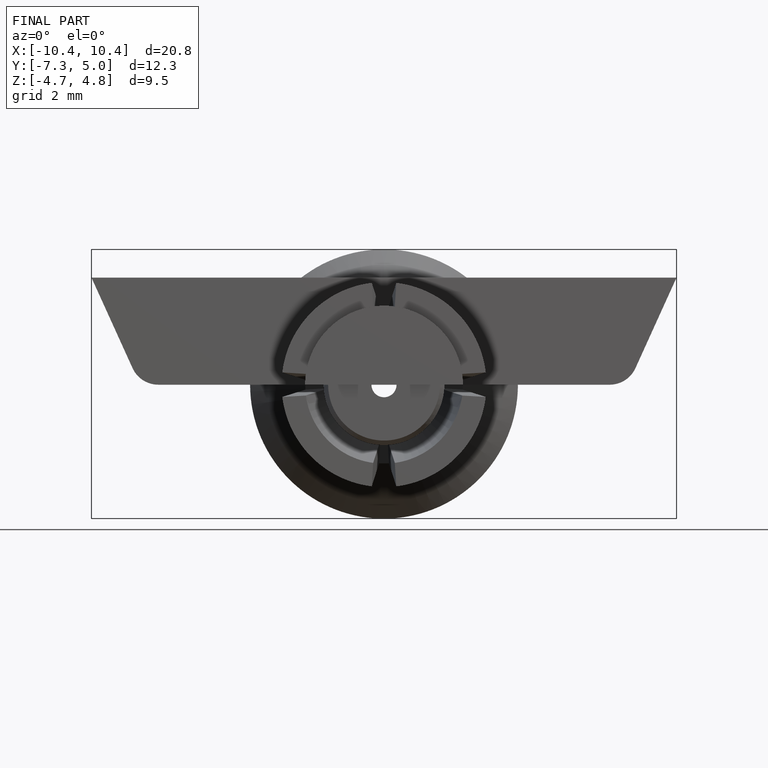
[diagram: finished part — front view with bounding-box wireframe]
